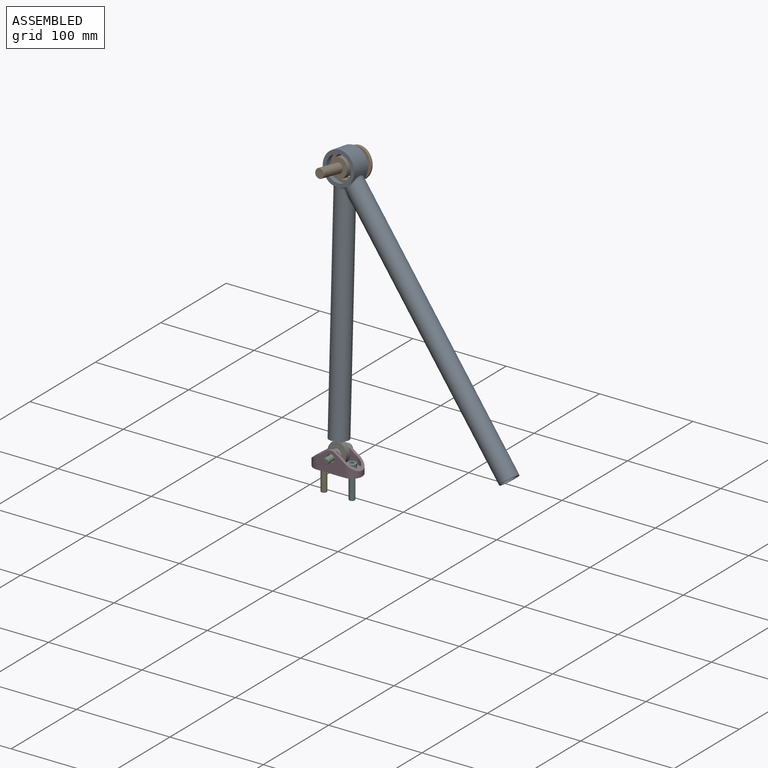
[diagram: assembled view]
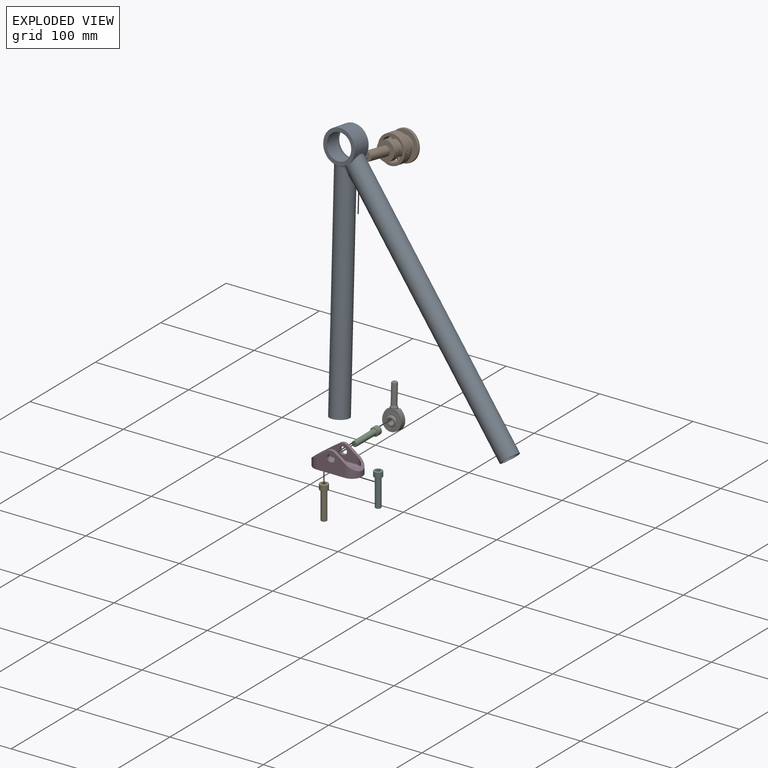
[diagram: exploded view]
GUIDED TOUR — MATED ASSEMBLY WITH SUBASSEMBLIES (Onshape document c569f687ecbf7cb7400b0703, AutoMate assembly c569f687ecbf7cb7400b0703_3082568f46f3f7c2580e98b1_21760d885458aef11b43236a_default)

This assembly has 12 component occurrences arranged in 7 top-level units: 5 individual components plus 2 subassemblies (S0, S1). The tour has two levels: first the top level, where each subassembly is treated as one rigid unit; then each subassembly is toured internally in its own section (nesting deeper than one subassembly level is flattened into its subassembly's section).

Components are labeled P0..P11 across the whole record; subassembly units are labeled S0..S1. A mate is a constraint between two units; its type names the relative motion it leaves free:
  BALL — leaves all rotation about the listed point free (a ball joint),
  CYLINDRICAL — leaves both rotation about and translation along the listed axis free,
  FASTENED — locks the two components together rigidly (no relative motion),
  PLANAR — leaves sliding in the plane through the listed point (normal = the listed direction) and rotation about that normal free,
  REVOLUTE — leaves rotation about the listed axis free (a hinge).
Axis/direction vectors are unit vectors and 'through' points are millimeter coordinates, both in the assembly's world frame.

TOP-LEVEL MATES (between units; each subassembly's internal mates are listed in its own section)
  1. FASTENED "Fastened 2": S1 <-> P3, direction (0.000, -1.000, 0.000) through (0.00, 1.00, 15.00) mm
  2. PLANAR "Planar 1": P5 <-> P7, direction (0.000, 0.000, 1.000) through (-15.00, 0.00, 5.00) mm
  3. FASTENED "Fastened 1": P5 <-> P3, direction (0.000, -1.000, 0.000) through (0.00, 11.00, 15.00) mm
  4. REVOLUTE "Revolute 1": P7 <-> P5, axis (0.000, 0.000, 1.000) through (-15.00, 0.00, 5.00) mm
  5. CYLINDRICAL "Cylindrical 1": P0 <-> S1, axis (-0.061, 0.127, 0.990) through (-0.84, 2.75, 28.66) mm
  6. REVOLUTE "Revolute 3": S0 <-> P0, axis (0.048, 0.991, -0.124) through (-15.76, 42.35, 275.18) mm

TOP-LEVEL ASSEMBLY ORDER
  1. P5 — the base component [order heuristic]
  2. S1 — core [order heuristic]
  3. P7 — core [order heuristic]
  4. P8 — core [order heuristic]
  5. P3 — core [order heuristic]
  6. S0 [order verified]
  7. P0 [order verified]
Order-tag legend:
  [order verified] — this step's position reverses a verified removal order: the component was checked to insert without passing through the ones already placed.
  [order heuristic] — the first 5 components form the assembly's core: parts whose collision-free extraction could not be verified, listed in mate-graph order.

Of the 12 component occurrences, 7 carry the full construction recipe — the FeatureScript program that regenerates the part's solid from scratch; the rest are supplied as boundary geometry only. Each toured unit is shown spotlighted twice — assembled, then exploded with a leader line back to its socket (green = recipe-attached component, orange = geometry-only, blue = subassembly unit; the rest desaturated gray).
NOTE — document 2 of 2 of this assembly tour. The two overview renders and the header above are repeated from document 1; the component sections below continue where the previous document stopped.
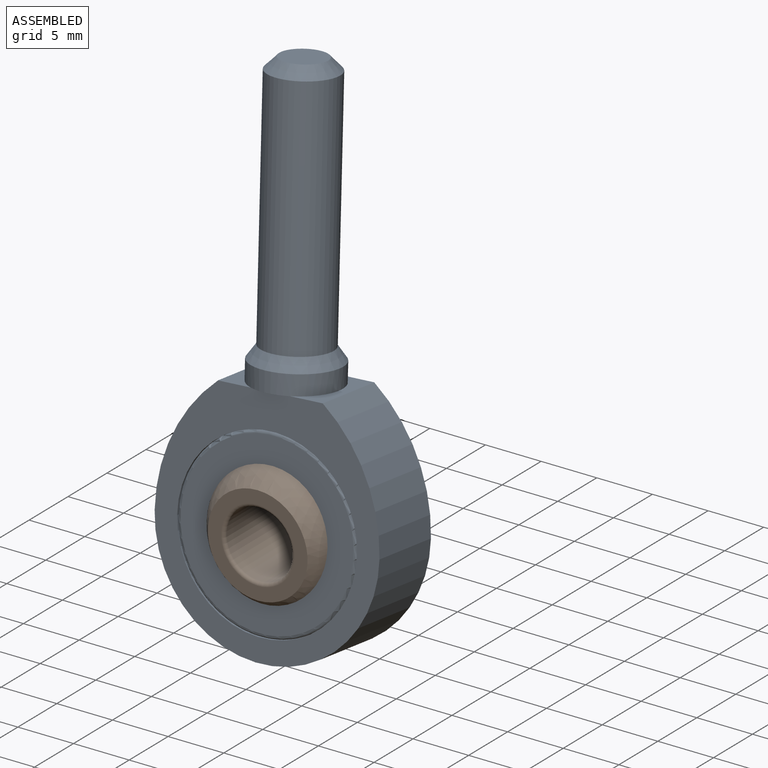
[diagram: subassembly S1 — assembled view]
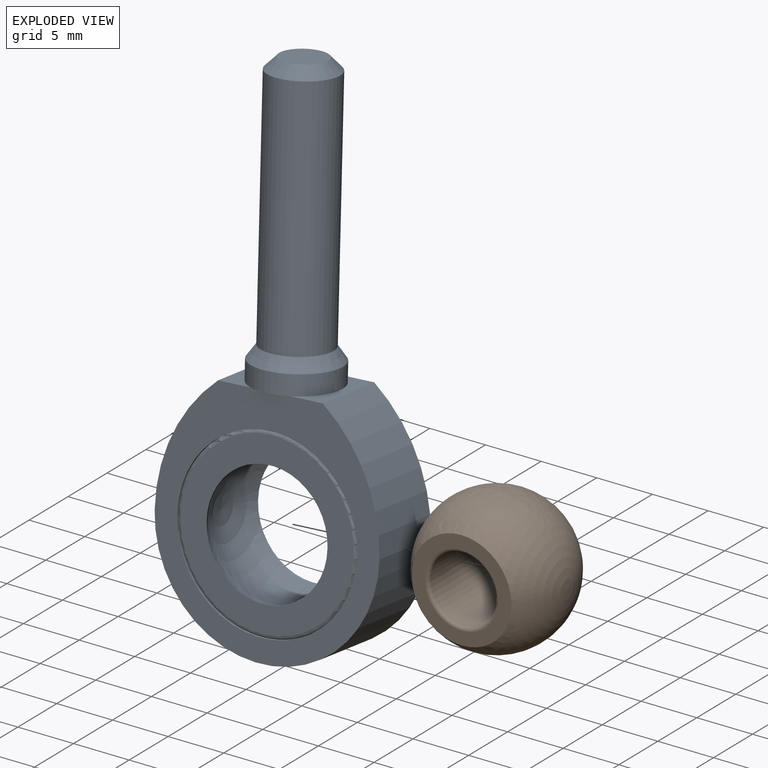
[diagram: subassembly S1 — exploded view]
SUBASSEMBLY S1 TOUR — 2 components, shown here in isolation at its own camera.

INTERNAL MATES
  1. BALL "Ball 1": P9 <-> P10, direction (0.998, 0.017, 0.059) through (0.00, 1.00, 15.00) mm
  2. BALL "Ball 1": P9 <-> P10, direction (0.998, 0.017, 0.059) through (0.00, 1.00, 15.00) mm

ASSEMBLY ORDER (within the subassembly)
  1. P9 — the base component [order heuristic]
  2. P10 [order heuristic]
Order-tag legend:
  [order heuristic] — this assembly is geometrically interlocked (no collision-free removal order exists), so components are listed in mate-graph order; insertion feasibility is not verified.
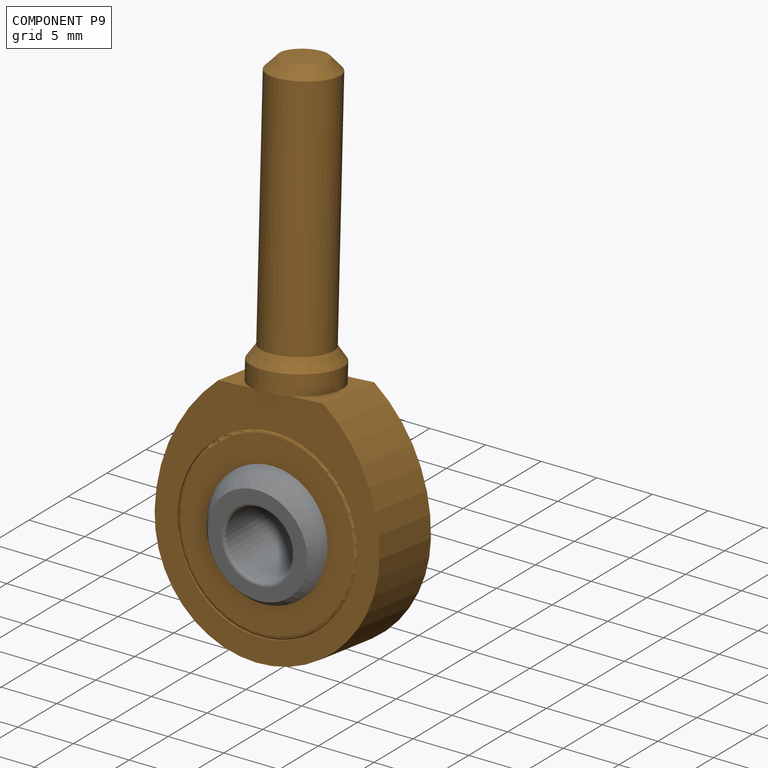
[diagram: component P9 — assembled]
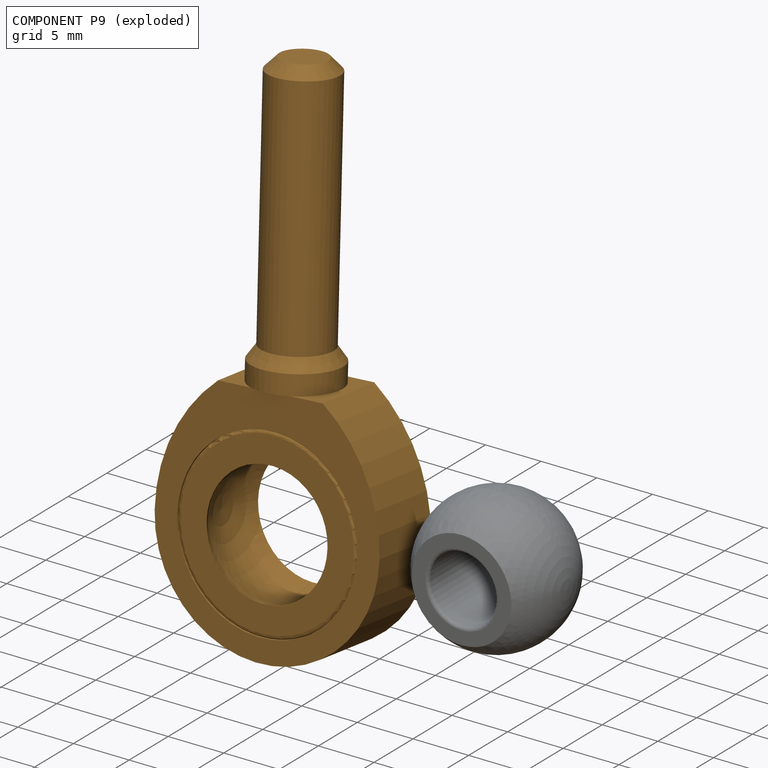
[diagram: component P9 — exploded]
COMPONENT P9 — geometry summary (no construction recipe available for this part):
  bounding box: 46.0 x 20.0 x 12.7 mm
  B-rep topology: 1 solid, 21 faces, 92 edges
  volume: 2265 mm^3 (19% of its bounding box)
  symmetry: 2-fold rotationally symmetric about the x axis; mirror-symmetric across its y mid-plane, z mid-plane
Held by: BALL mate "Ball 1" to P10; BALL mate "Ball 1" to P10.
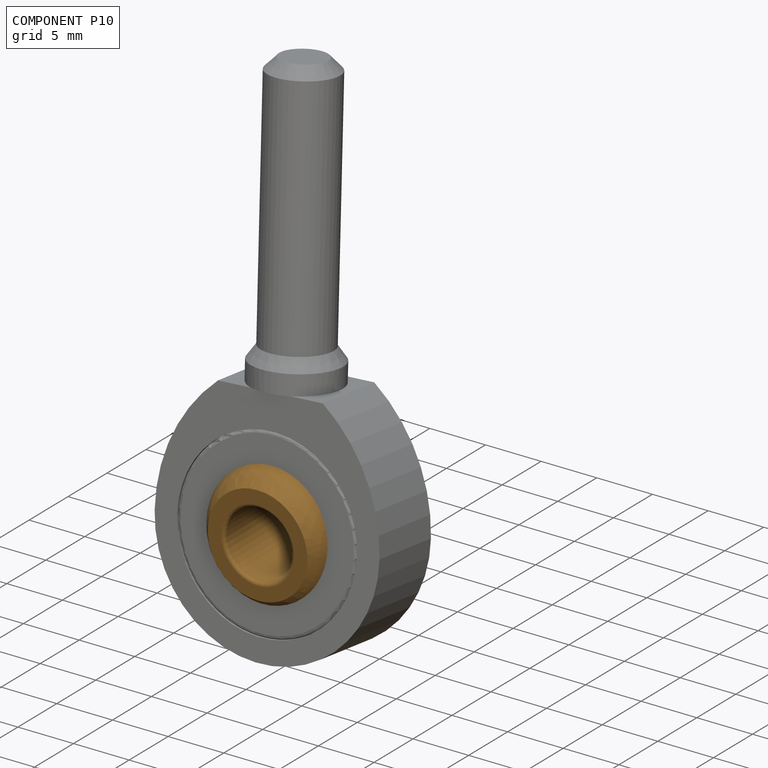
[diagram: component P10 — assembled]
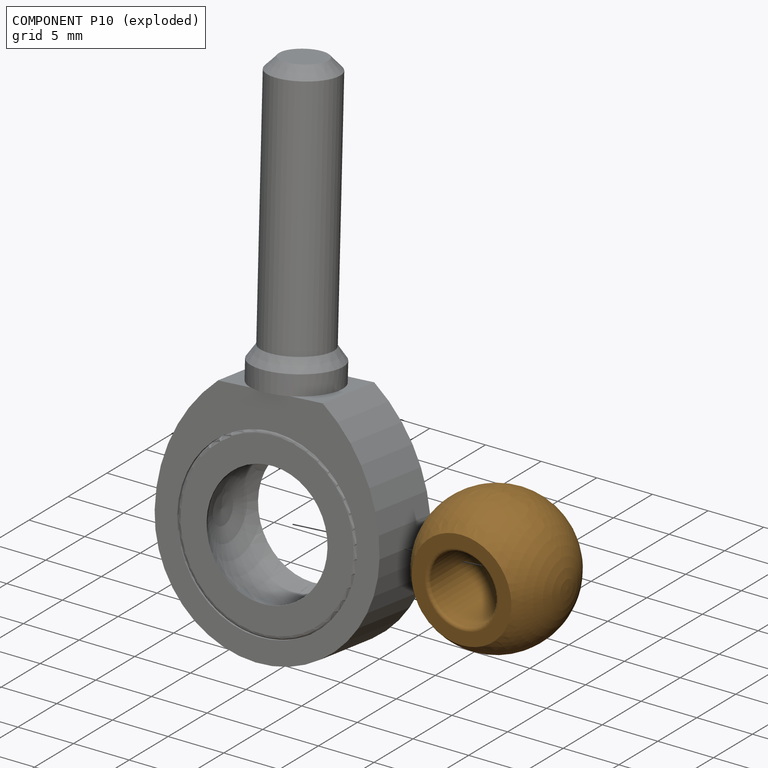
[diagram: component P10 — exploded]
COMPONENT P10 — geometry summary (no construction recipe available for this part):
  bounding box: 12.7 x 12.7 x 12.7 mm
  B-rep topology: 1 solid, 6 faces, 22 edges
  volume: 694 mm^3 (34% of its bounding box)
  symmetry: 2-fold rotationally symmetric about the x axis; revolution-symmetric about the y axis through its bounding-box center; 2-fold rotationally symmetric about the z axis; mirror-symmetric across its x mid-plane, y mid-plane, z mid-plane
Held by: BALL mate "Ball 1" to P9; BALL mate "Ball 1" to P9.
PROVENANCE & LICENSES
Assembly (occurrences, transforms, mates, per-part STEP geometry): AutoMate dataset, Zenodo record 7776208, CC0.
Construction recipes: CADFS (HuggingFace VladPyatov/CADFS, CC-BY-4.0, layered over the ABC dataset), FeatureScript reconstruction programs keyed by ABC model id.
Join: ABC meta listings map ABC model id -> Onshape documentId; within a shared document, parts are matched by geometric signature (bounding-box dims + volume at 0.1% relative tolerance, exact B-rep face/solid counts).
Verification: 7 of this assembly's 12 components carry a recipe attachment, and every attachment is mesh-verified: the CADFS STEP and the AutoMate member STEP were compared as meshes in their shared local frame (symmetric sampled-point-to-mesh distance); worst across the 7 attachments: below the mesh-comparison resolution (tessellation chordal tolerance ~0.0961 mm) on a 64 mm part.
Renders: orthographic iso camera (az 35 / el 25); the floor grid conveys scale (grid pitch printed in each image; no ruler). In the exploded view each component is displaced by its stored offset vector: the offsets alone carry the explosion direction (mate normal/axis signs are not orientation cues and do not encode it), and separation distances are assigned per mate-chain, not proportionally to assembly-order depth.
